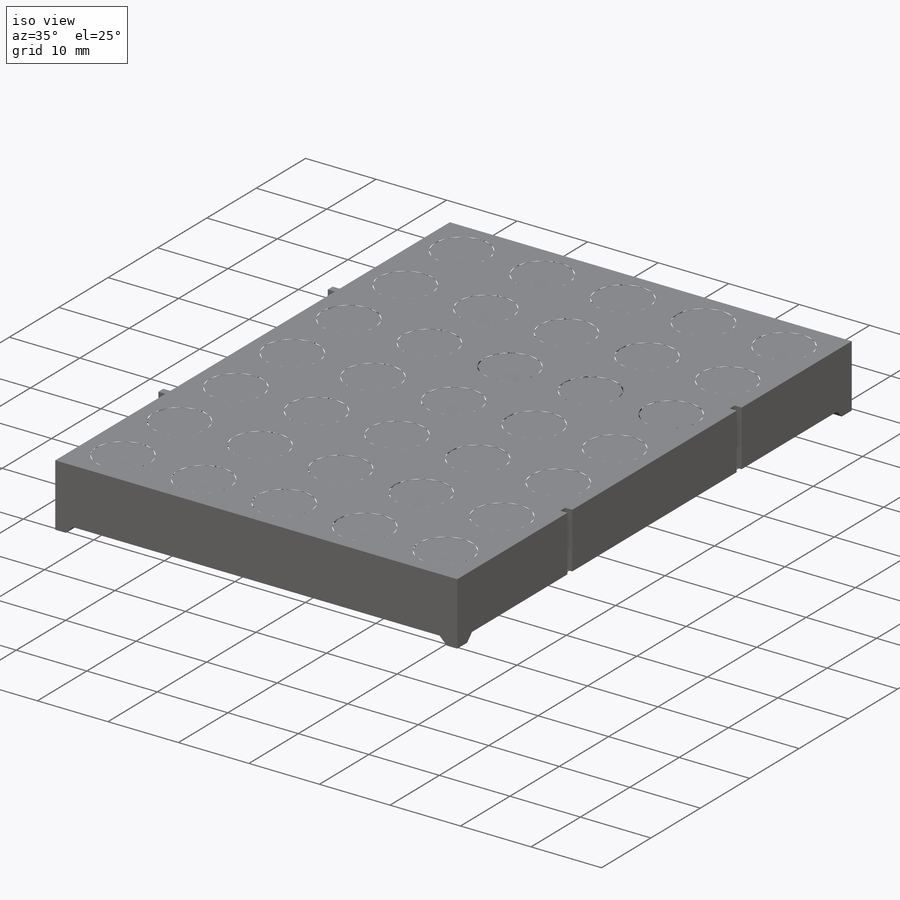
[diagram: iso view]
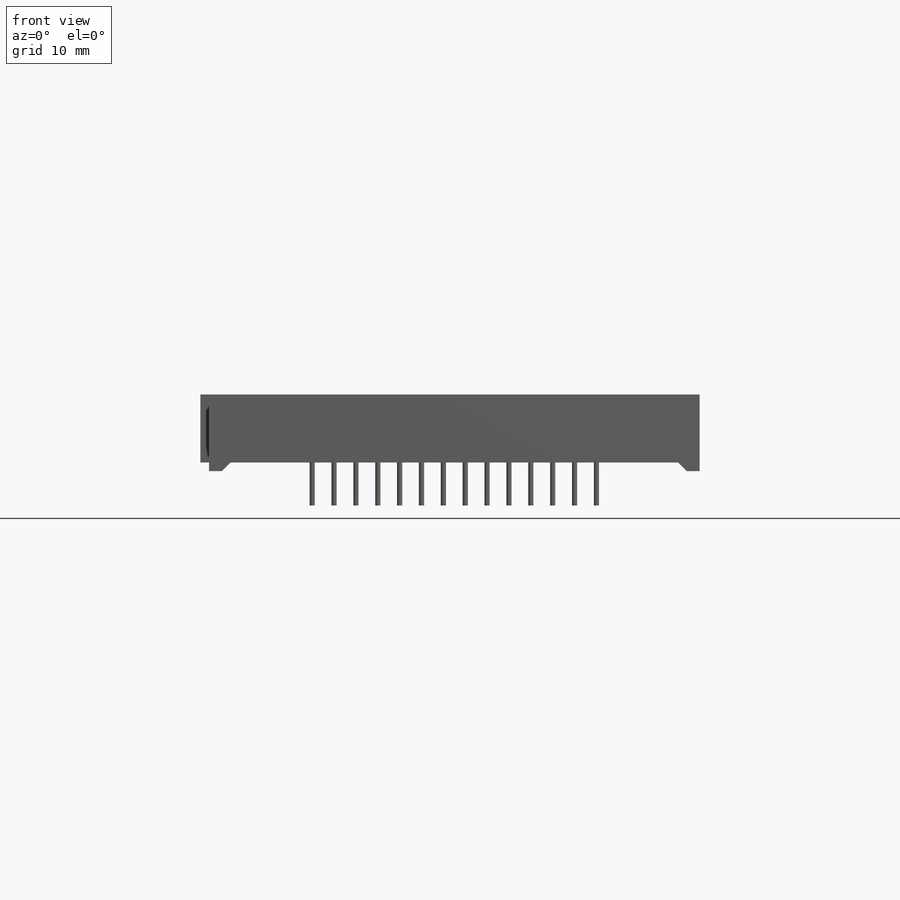
[diagram: front view]
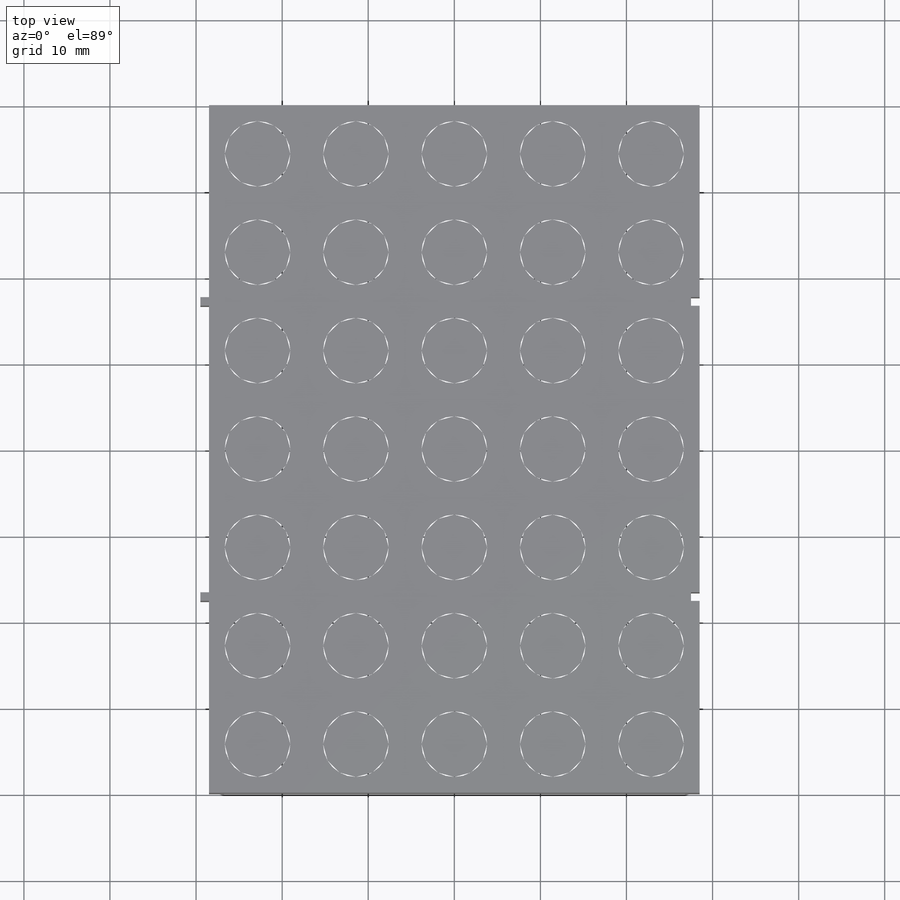
[diagram: top view]
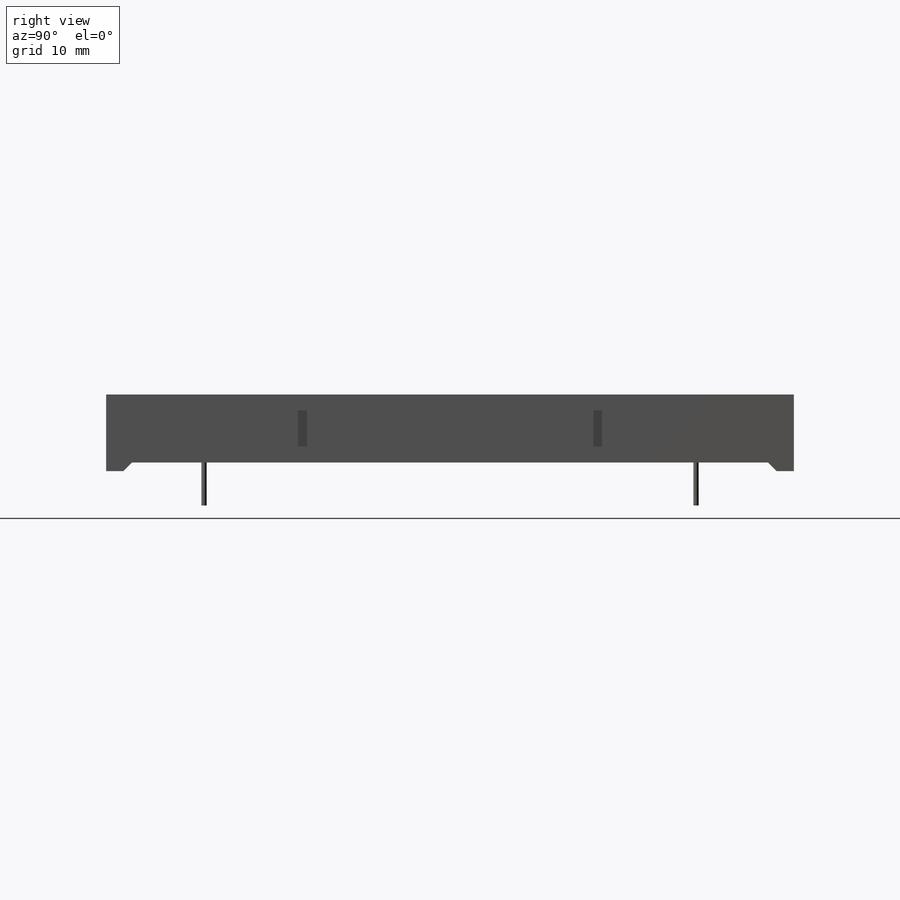
[diagram: right view]
SOLIDWORKS PART (.sldprt)
format: sldprt  version: not decoded by parser v0  size: 915,968 bytes
history: native  units: mm
features: sketch x8, cut_extrude x5, extrude x3, material x1 (+11 scaffold rows collapsed)
feature tree (28):
  scaffold x11  (default folders/planes/origin — collapsed)
  material  "Material <not specified>"
  sketch  "Sketch1"  dims[c1.D1=79.9mm c1.D2=8.9mm c1.D3=1.0mm c1.D4=2.0mm c1.D5=2.0mm c2.D4=2.0mm c2.D5=1.0mm c3.D5=45.0deg c3.D6=2.0mm c3.D7=1.0mm c4.D7=45.0deg]
  extrude  "Extrude1"  Depth=57mm
  sketch  "Sketch2"  dims[c1.D1=2.0mm c1.D2=7.62mm c2.D1=11.43mm c2.D3=11.43mm c2.D4=11.43mm c2.D5=11.43mm c2.D6=11.43mm c2.D7=11.43mm c2.D8=11.43mm c2.D9=11.43mm c2.D10=11.43mm c2.D11=11.43mm c2.D12=1.0mm c2.D13=1.0mm]
  sketch  "Sketch3"  dims[c1.D1=1.0mm c1.D2=1.5mm c1.D3=1.5mm c2.D2=1.0mm c3.D2=45.0deg c3.D3=~1.190494mm c4.D3=45.0deg c4.D4=1.5mm c4.D5=1.5mm]
  cut_extrude  "Cut-Extrude1"  [1 undecoded]
  cut_extrude  "Cut-Extrude2"  Depth=0.05mm
  sketch  "Sketch4"  dims[c1.D9=0.6mm c1.D1=2.54mm c1.D2=2.54mm c1.D3=2.54mm c1.D4=0.5mm c1.D5=0.5mm c1.D6=2.54mm c1.D7=2.54mm c1.D8=7.62mm c2.D1=2.54mm c2.D2=2.54mm c2.D3=2.54mm c2.D4=2.54mm c2.D5=2.54mm c2.D6=7.62mm c2.D7=0.5mm c2.D8=0.5mm c3.D1=2.54mm c3.D2=2.54mm c3.D3=2.54mm c3.D4=2.0mm c3.D5=2.0mm c3.D6=2.0mm c3.D10=3.83mm c3.D11=57.15mm c4.D10=2.54mm c4.D12=2.54mm c4.D13=2.54mm c4.D4=2.54mm c4.D5=2.54mm c4.D6=2.54mm c4.D14=2.54mm c4.D15=2.54mm c4.D16=2.54mm c4.D17=2.54mm]
  extrude  "Extrude2"  Depth=4mm
  cut_extrude  "Cut-Extrude3"  [1 undecoded]
  sketch  "Sketch4<4>"
  cut_extrude  "Cut-Extrude5"  [1 undecoded]
  sketch  "Sketch2<4>"
  sketch  "Sketch5"  dims[D1=3.0mm]
  cut_extrude  "Cut-Extrude6"  Depth=0.01mm
  extrude  "Extrude4"  [1 undecoded]
  sketch  "Sketch2<5>"
decode coverage: 9 of 16 modeling features carry decoded parameters
note: ~ marks probable driven/reference dimensions
note: 4 parameter values undecoded
summary: no parameter record found for 4 features
note: suppression state not decoded; provenance and decode notes live in map.json
